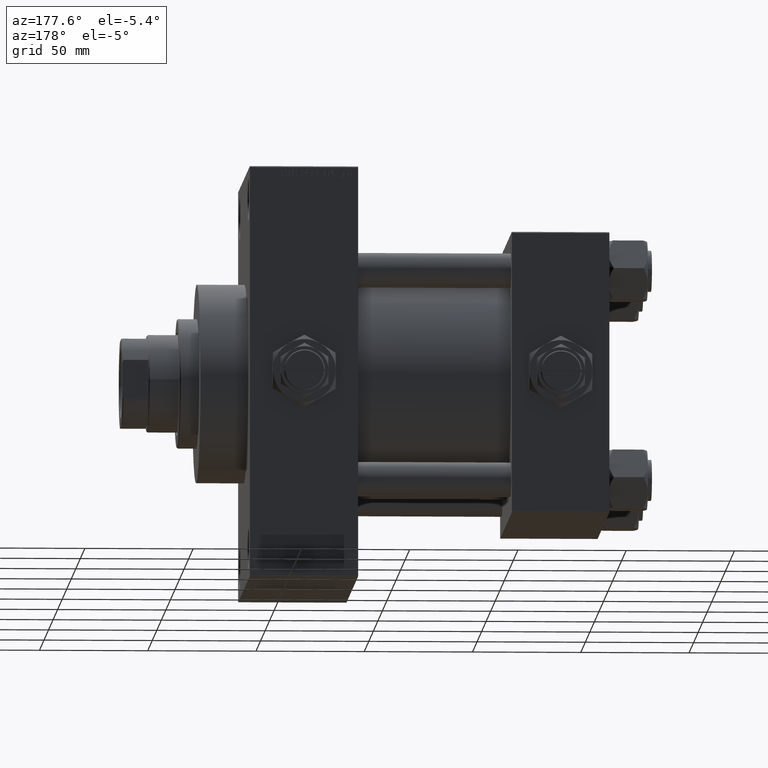
[diagram: clean part render]
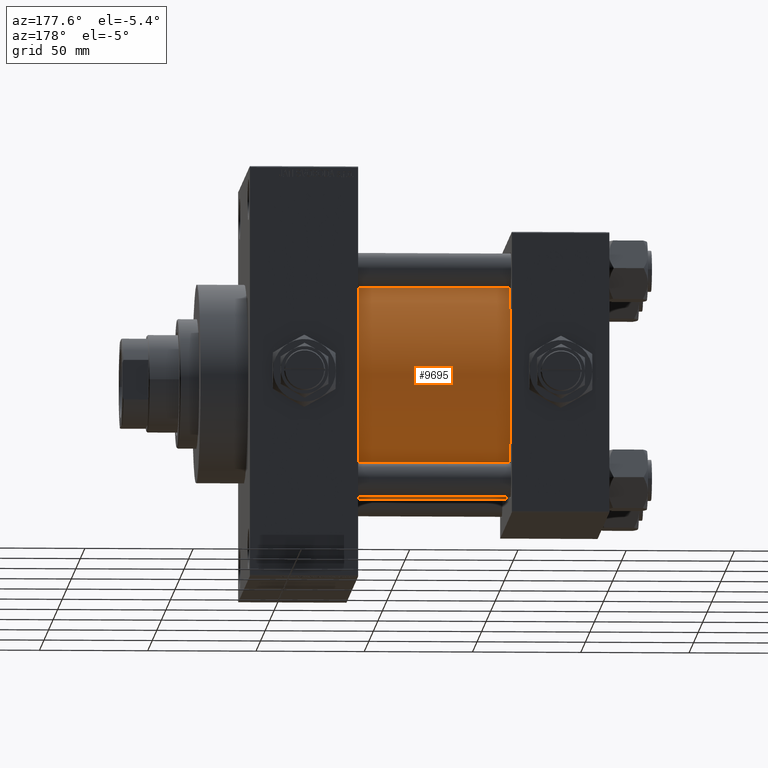
[diagram: same view with one face highlighted and labeled with its STEP entity id]
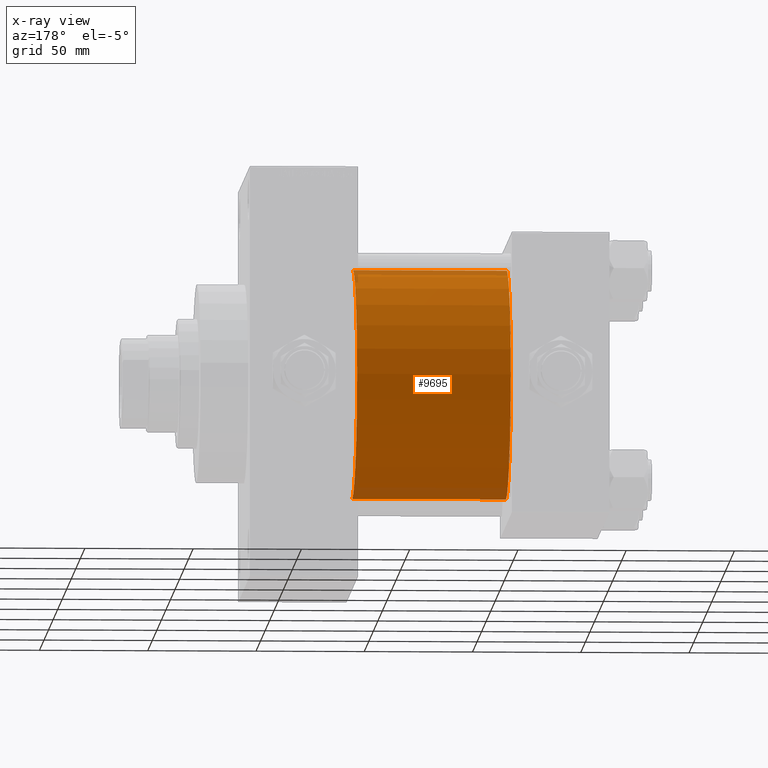
[diagram: x-ray of the same camera — body ghosted, the highlighted face saturated]
A machine part, auxiliary view. The second image highlights one B-rep face of the part: STEP entity #9695.
The next image is the same camera in x-ray: the body ghosted, the highlighted face saturated — about 6% of this face is hidden behind the body in this view.
In plain terms, the highlighted cylindrical surface (partial cylindrical patch) has radius 53 mm, axis along (-1, -0, -0).
Its self-contained STEP definition (entity closure, byte-faithful):
#2462 = ORIENTED_EDGE ( 'NONE', *, *, #30160, .F. ) ;
#4483 = LINE ( 'NONE', #31440, #11020 ) ;
#4730 = VECTOR ( 'NONE', #41361, 1000.000000000000000 ) ;
#6444 = CIRCLE ( 'NONE', #37000, 53.00000000000000711 ) ;
#6807 = CARTESIAN_POINT ( 'NONE',  ( 45.00000000000000000, 3.888542821515762466E-15, -53.00000000000000711 ) ) ;
#7821 = CIRCLE ( 'NONE', #8600, 53.00000000000000711 ) ;
#8019 = ORIENTED_EDGE ( 'NONE', *, *, #24998, .T. ) ;
#8600 = AXIS2_PLACEMENT_3D ( 'NONE', #29513, #14142, #44856 ) ;
#9503 = EDGE_LOOP ( 'NONE', ( #2462, #8019, #48297, #43170 ) ) ;
#9695 = ADVANCED_FACE ( 'NONE', ( #19482 ), #19725, .T. ) ;
#11020 = VECTOR ( 'NONE', #12292, 1000.000000000000000 ) ;
#11636 = AXIS2_PLACEMENT_3D ( 'NONE', #15698, #31072, #27288 ) ;
#12292 = DIRECTION ( 'NONE',  ( -1.000000000000000000, -0.000000000000000000, -0.000000000000000000 ) ) ;
#14142 = DIRECTION ( 'NONE',  ( 1.000000000000000000, -0.000000000000000000, 0.000000000000000000 ) ) ;
#15203 = CARTESIAN_POINT ( 'NONE',  ( 115.9999999999999858, 3.888542821515762466E-15, -53.00000000000000711 ) ) ;
#15698 = CARTESIAN_POINT ( 'NONE',  ( 115.9999999999999858, -2.602085213965210642E-15, 0.000000000000000000 ) ) ;
#16163 = VERTEX_POINT ( 'NONE', #42419 ) ;
#19014 = EDGE_CURVE ( 'NONE', #25193, #16163, #7821, .T. ) ;
#19468 = CARTESIAN_POINT ( 'NONE',  ( 115.9999999999999858, 3.888542821515762466E-15, -53.00000000000000711 ) ) ;
#19482 = FACE_OUTER_BOUND ( 'NONE', #9503, .T. ) ;
#19653 = EDGE_CURVE ( 'NONE', #23455, #16163, #4483, .T. ) ;
#19725 = CYLINDRICAL_SURFACE ( 'NONE', #11636, 53.00000000000000711 ) ;
#23257 = LINE ( 'NONE', #19468, #4730 ) ;
#23455 = VERTEX_POINT ( 'NONE', #44314 ) ;
#24998 = EDGE_CURVE ( 'NONE', #36336, #25193, #23257, .T. ) ;
#25193 = VERTEX_POINT ( 'NONE', #6807 ) ;
#27288 = DIRECTION ( 'NONE',  ( 0.000000000000000000, 0.000000000000000000, 1.000000000000000000 ) ) ;
#29513 = CARTESIAN_POINT ( 'NONE',  ( 45.00000000000000000, -2.602085213965210642E-15, 0.000000000000000000 ) ) ;
#30160 = EDGE_CURVE ( 'NONE', #36336, #23455, #6444, .T. ) ;
#31072 = DIRECTION ( 'NONE',  ( -1.000000000000000000, -0.000000000000000000, -0.000000000000000000 ) ) ;
#31440 = CARTESIAN_POINT ( 'NONE',  ( 115.9999999999999858, -2.602085213965210642E-15, 53.00000000000000711 ) ) ;
#36336 = VERTEX_POINT ( 'NONE', #15203 ) ;
#37000 = AXIS2_PLACEMENT_3D ( 'NONE', #41324, #45100, #37301 ) ;
#37301 = DIRECTION ( 'NONE',  ( 0.000000000000000000, 0.000000000000000000, -1.000000000000000000 ) ) ;
#41324 = CARTESIAN_POINT ( 'NONE',  ( 115.9999999999999858, -2.602085213965210642E-15, 0.000000000000000000 ) ) ;
#41361 = DIRECTION ( 'NONE',  ( -1.000000000000000000, -0.000000000000000000, -0.000000000000000000 ) ) ;
#42419 = CARTESIAN_POINT ( 'NONE',  ( 45.00000000000000000, -2.602085213965210642E-15, 53.00000000000000711 ) ) ;
#43170 = ORIENTED_EDGE ( 'NONE', *, *, #19653, .F. ) ;
#44314 = CARTESIAN_POINT ( 'NONE',  ( 115.9999999999999858, -2.602085213965210642E-15, 53.00000000000000711 ) ) ;
#44856 = DIRECTION ( 'NONE',  ( 0.000000000000000000, 0.000000000000000000, 1.000000000000000000 ) ) ;
#45100 = DIRECTION ( 'NONE',  ( 1.000000000000000000, 0.000000000000000000, 0.000000000000000000 ) ) ;
#48297 = ORIENTED_EDGE ( 'NONE', *, *, #19014, .T. ) ;